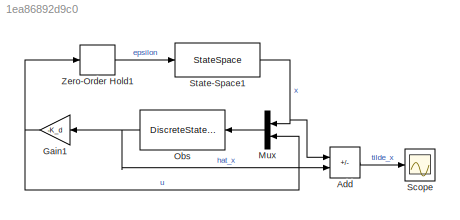
MODEL slx_1ea86892d9c0
KIND model
CONFIG AbsTol = auto
CONFIG EnableMultiTasking = off
CONFIG FixedStep = auto
CONFIG MaxStep = 0.001
CONFIG MinStep = auto
CONFIG RelTol = 1e-3
CONFIG SampleTimeConstraint = Unconstrained
CONFIG SolverName = VariableStepAuto
CONFIG StartTime = 0.0
CONFIG StopTime = 2
BLOCK [Sum] Add
  IconShape = rectangular
  Inputs = +-
  Ports = [2, 1]
BLOCK [Gain] Gain1
  Gain = -K_d
  Multiplication = Matrix(K*u)
  NameLocation = top
BLOCK [Mux] Mux
  DisplayOption = bar
  Inputs = 2
  NameLocation = top
  Ports = [2, 1]
BLOCK [DiscreteStateSpace] Obs
  A = A_d - L*C
  B = [L*C B_d]
  C = eye(2)
  D = zeros(2, 3)
  SampleTime = T
BLOCK [Scope] Scope
  Floating = off
  NumInputPorts = 1
  Ports = [1]
  ScopeSpecificationString = Simulink.scopes.TimeScopeBlockCfg('CurrentConfiguration', extmgr.ConfigurationSet(extmgr.Configuration('Core','General UI',true),extmgr.Configuration('Core','Source UI',true),extmgr.Configuration('Sources','WiredSimulink',true),extmgr.Configuration('Visuals','Time Domain',true),extmgr.Configuration('Tools','Plot Navigation',true),extmgr.Configuration('Tools','Measurements',true)),'Version','2022a'...<+1ch>
BLOCK [StateSpace] State-Space1
  A = A
  B = B
  C = eye(2)
  D = [0;0]
  InitialCondition = x_0
  Ports = [1, 1]
BLOCK [ZeroOrderHold] Zero-Order Hold1
  SampleTime = T
LINE Add:1 -> Scope:1
NET Gain1:1 -> Mux:2, Zero-Order Hold1:1
LINE Mux:1 -> Obs:1
NET Obs:1 -> Add:2, Gain1:1
NET State-Space1:1 -> Add:1, Mux:1
LINE Zero-Order Hold1:1 -> State-Space1:1
note: NET lines group one-source signal fan-out (src -> all destinations, sorted); 1:1 wires keep LINE
